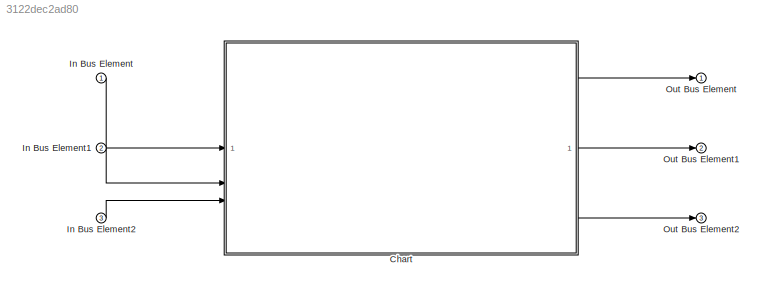
MODEL slx_3122dec2ad80
KIND model
CONFIG AbsTol = auto
CONFIG EnableMultiTasking = off
CONFIG FixedStep = 0.1
CONFIG MaxStep = auto
CONFIG MinStep = auto
CONFIG RelTol = 1e-3
CONFIG SampleTimeConstraint = Unconstrained
CONFIG SolverName = FixedStepAuto
CONFIG StartTime = 0.0
CONFIG StopTime = 10.0
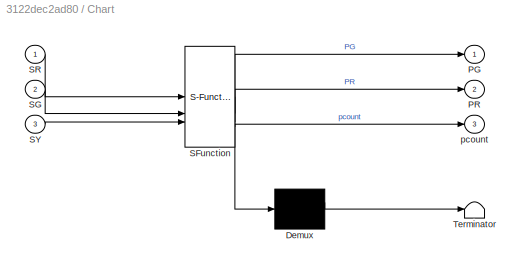
BLOCK [SubSystem] Chart
  ErrorFcn = Stateflow.Translate.translate
  PermitHierarchicalResolution = ExplicitOnly
  SFBlockType = Chart
  TreatAsAtomicUnit = on
BLOCK [Demux] Chart/ Demux 
  Outputs = 1
BLOCK [S-Function] Chart/ SFunction 
  EnableBusSupport = on
  FunctionName = sf_sfun
  PortCounts = [3 4]
  SFcnIsStateOwnerBlock = off
  SFunctionDeploymentMode = off
  Tag = Stateflow S-Function 3
BLOCK [Terminator] Chart/ Terminator 
BLOCK [Outport] Chart/PG
BLOCK [Outport] Chart/PR
  Port = 2
BLOCK [Inport] Chart/SG
  Port = 2
BLOCK [Inport] Chart/SR
BLOCK [Inport] Chart/SY
  Port = 3
BLOCK [Outport] Chart/pcount
  Port = 3
BLOCK [Inport] In Bus Element
BLOCK [Inport] In Bus Element1
  Port = 2
BLOCK [Inport] In Bus Element2
  Port = 3
BLOCK [Outport] Out Bus Element
BLOCK [Outport] Out Bus Element1
  Port = 2
BLOCK [Outport] Out Bus Element2
  Port = 3
LINE Chart:1 -> Out Bus Element:1
LINE Chart:2 -> Out Bus Element1:1
LINE Chart:3 -> Out Bus Element2:1
LINE In Bus Element1:1 -> Chart:2
LINE In Bus Element2:1 -> Chart:3
LINE In Bus Element:1 -> Chart:1
CHART Chart states=2 transitions=4
  STATE_LABEL 'green'
  STATE_LABEL 'red'
CHART  states=0 transitions=0
